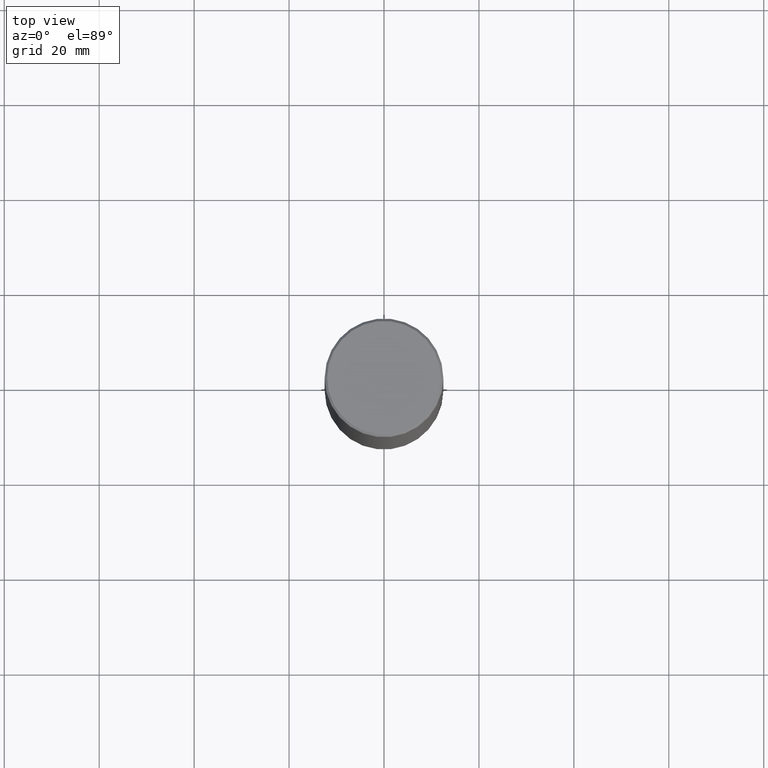
[diagram: clean part render]
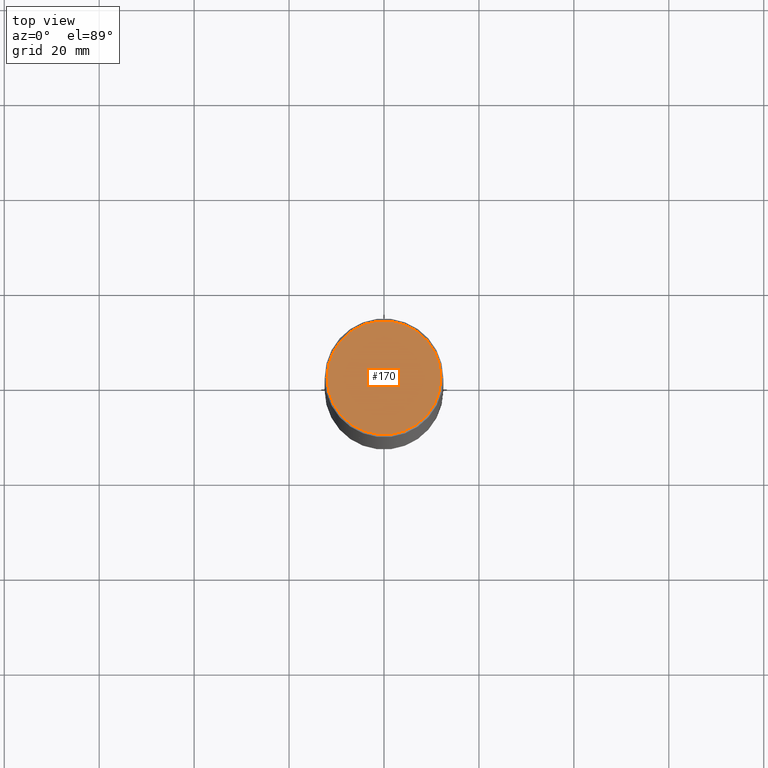
[diagram: same view with one face highlighted and labeled with its STEP entity id]
A machine part, top view. The second image highlights one B-rep face of the part: STEP entity #170.
In plain terms, the highlighted planar face has unit normal (0, -0, -1).
Its self-contained STEP definition (entity closure, byte-faithful):
#17 = DIRECTION ( 'NONE',  ( -2.445468806185136597E-29, 3.491481338843145583E-15, 1.000000000000000000 ) ) ;
#45 = DIRECTION ( 'NONE',  ( 1.000000000000000000, -6.982962677686265922E-15, 4.876006802227162976E-29 ) ) ;
#53 = CIRCLE ( 'NONE', #188, 0.4721499999999996255 ) ;
#59 = VERTEX_POINT ( 'NONE', #266 ) ;
#61 = VERTEX_POINT ( 'NONE', #69 ) ;
#69 = CARTESIAN_POINT ( 'NONE',  ( -0.4721499999999996255, 3.331920641657999252E-15, 8.537024980177643606E-18 ) ) ;
#96 = CARTESIAN_POINT ( 'NONE',  ( 3.297005828269567997E-15, 0.4721499999999996255, -1.644234401644689488E-15 ) ) ;
#112 = AXIS2_PLACEMENT_3D ( 'NONE', #125, #17, #45 ) ;
#121 = FACE_OUTER_BOUND ( 'NONE', #194, .T. ) ;
#125 = CARTESIAN_POINT ( 'NONE',  ( -2.087702828670439639E-46, 2.980686340760894400E-32, 8.537024980200822558E-18 ) ) ;
#127 = DIRECTION ( 'NONE',  ( 1.000000000000000000, -6.982962677686265922E-15, 4.876006802227162976E-29 ) ) ;
#137 = EDGE_CURVE ( 'NONE', #61, #59, #200, .T. ) ;
#151 = DIRECTION ( 'NONE',  ( 2.438088387897960049E-29, -3.491481338843145188E-15, -1.000000000000000000 ) ) ;
#170 = ADVANCED_FACE ( 'NONE', ( #121 ), #176, .F. ) ;
#175 = ORIENTED_EDGE ( 'NONE', *, *, #137, .T. ) ;
#176 = PLANE ( 'NONE',  #254 ) ;
#188 = AXIS2_PLACEMENT_3D ( 'NONE', #356, #239, #127 ) ;
#194 = EDGE_LOOP ( 'NONE', ( #175, #366 ) ) ;
#200 = CIRCLE ( 'NONE', #112, 0.4721499999999996255 ) ;
#216 = EDGE_CURVE ( 'NONE', #59, #61, #53, .T. ) ;
#239 = DIRECTION ( 'NONE',  ( -2.445468806185136597E-29, 3.491481338843145583E-15, 1.000000000000000000 ) ) ;
#254 = AXIS2_PLACEMENT_3D ( 'NONE', #96, #151, #352 ) ;
#266 = CARTESIAN_POINT ( 'NONE',  ( 0.4721499999999996255, -3.342703923013973396E-15, 8.537024980224040028E-18 ) ) ;
#352 = DIRECTION ( 'NONE',  ( -1.000000000000000000, 6.982962677686265922E-15, -4.876176775795935793E-29 ) ) ;
#356 = CARTESIAN_POINT ( 'NONE',  ( -2.087702828670439639E-46, 2.980686340760894400E-32, 8.537024980200822558E-18 ) ) ;
#366 = ORIENTED_EDGE ( 'NONE', *, *, #216, .T. ) ;